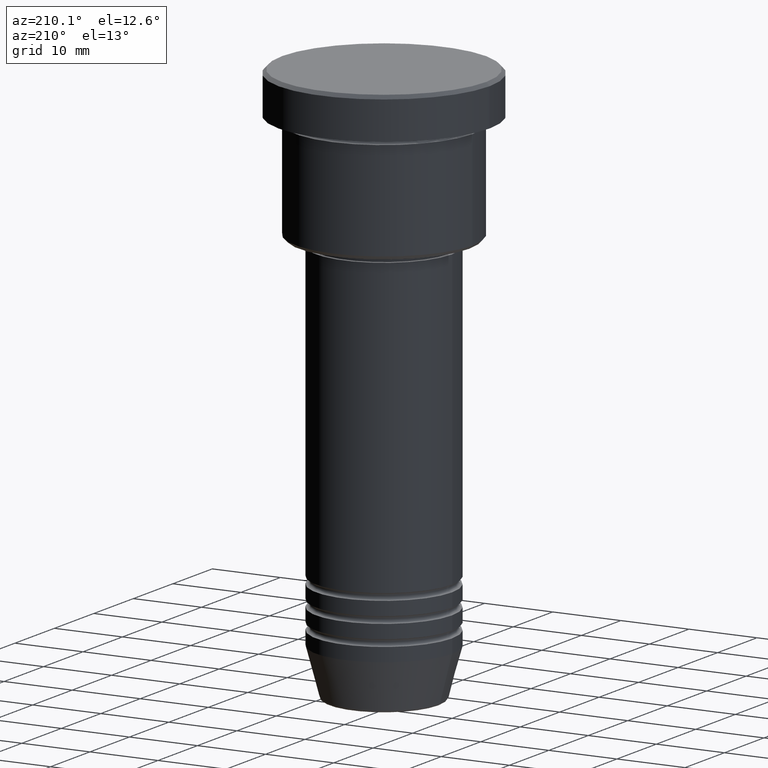
[diagram: clean part render]
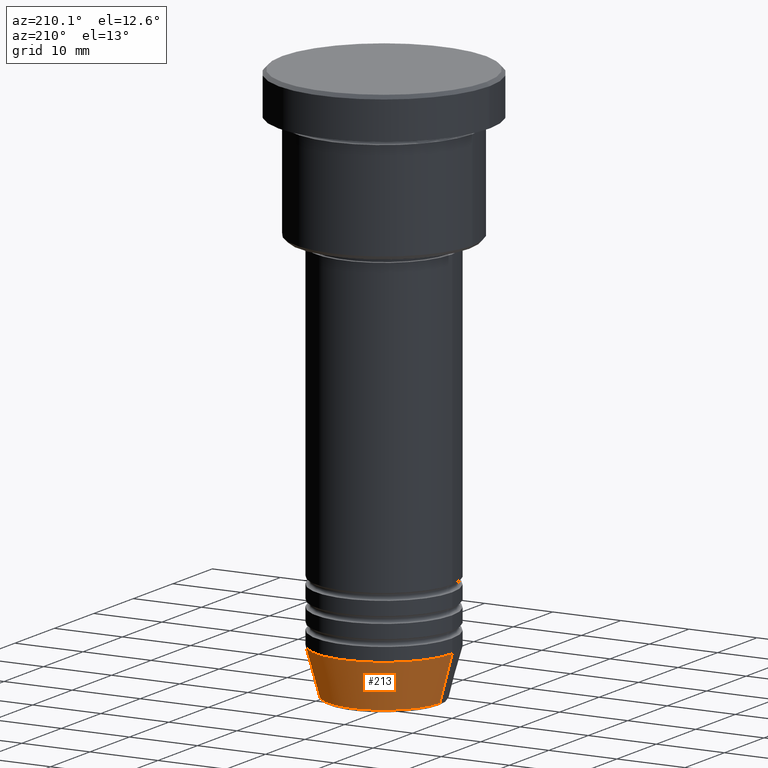
[diagram: same view with one face highlighted and labeled with its STEP entity id]
A machine part, auxiliary view. The second image highlights one B-rep face of the part: STEP entity #213.
In plain terms, the highlighted conical surface has half-angle 15 deg.
Its self-contained STEP definition (entity closure, byte-faithful):
#21 = ORIENTED_EDGE ( 'NONE', *, *, #557, .T. ) ;
#97 = DIRECTION ( 'NONE',  ( 1.000000000000000000, 0.000000000000000000, 0.000000000000000000 ) ) ;
#114 = ORIENTED_EDGE ( 'NONE', *, *, #784, .F. ) ;
#163 = AXIS2_PLACEMENT_3D ( 'NONE', #338, #252, #232 ) ;
#213 = ADVANCED_FACE ( 'NONE', ( #568 ), #904, .T. ) ;
#215 = LINE ( 'NONE', #401, #407 ) ;
#232 = DIRECTION ( 'NONE',  ( 1.000000000000000000, 0.000000000000000000, 0.000000000000000000 ) ) ;
#252 = DIRECTION ( 'NONE',  ( -0.000000000000000000, -0.000000000000000000, 1.000000000000000000 ) ) ;
#260 = CIRCLE ( 'NONE', #163, 10.00000000000000000 ) ;
#332 = VECTOR ( 'NONE', #686, 1000.000000000000000 ) ;
#338 = CARTESIAN_POINT ( 'NONE',  ( 0.000000000000000000, 0.000000000000000000, -74.99999999999998579 ) ) ;
#339 = VERTEX_POINT ( 'NONE', #974 ) ;
#369 = AXIS2_PLACEMENT_3D ( 'NONE', #913, #724, #97 ) ;
#394 = DIRECTION ( 'NONE',  ( -0.000000000000000000, -0.000000000000000000, 1.000000000000000000 ) ) ;
#401 = CARTESIAN_POINT ( 'NONE',  ( -10.00000000000000000, 1.224646799147353256E-15, -74.99999999999998579 ) ) ;
#407 = VECTOR ( 'NONE', #494, 1000.000000000000000 ) ;
#409 = VERTEX_POINT ( 'NONE', #797 ) ;
#410 = EDGE_CURVE ( 'NONE', #1040, #919, #260, .T. ) ;
#494 = DIRECTION ( 'NONE',  ( -0.2588190451025213501, 3.169619151431772337E-17, 0.9659258262890680902 ) ) ;
#535 = CARTESIAN_POINT ( 'NONE',  ( -10.00000000000000000, 1.224646799147353256E-15, -74.99999999999998579 ) ) ;
#556 = ORIENTED_EDGE ( 'NONE', *, *, #410, .F. ) ;
#557 = EDGE_CURVE ( 'NONE', #409, #339, #639, .T. ) ;
#568 = FACE_OUTER_BOUND ( 'NONE', #817, .T. ) ;
#572 = CARTESIAN_POINT ( 'NONE',  ( 0.000000000000000000, 0.000000000000000000, -74.99999999999998579 ) ) ;
#616 = CARTESIAN_POINT ( 'NONE',  ( 10.00000000000000000, 0.000000000000000000, -74.99999999999998579 ) ) ;
#639 = CIRCLE ( 'NONE', #369, 8.223655072137187716 ) ;
#643 = ORIENTED_EDGE ( 'NONE', *, *, #1183, .T. ) ;
#686 = DIRECTION ( 'NONE',  ( 0.2588190451025213501, 0.000000000000000000, 0.9659258262890680902 ) ) ;
#692 = LINE ( 'NONE', #1044, #332 ) ;
#724 = DIRECTION ( 'NONE',  ( -0.000000000000000000, -0.000000000000000000, 1.000000000000000000 ) ) ;
#749 = DIRECTION ( 'NONE',  ( 1.000000000000000000, 0.000000000000000000, 0.000000000000000000 ) ) ;
#784 = EDGE_CURVE ( 'NONE', #409, #1040, #692, .T. ) ;
#797 = CARTESIAN_POINT ( 'NONE',  ( 8.223655072137187716, 0.000000000000000000, -81.62940952255125637 ) ) ;
#817 = EDGE_LOOP ( 'NONE', ( #21, #643, #556, #114 ) ) ;
#904 = CONICAL_SURFACE ( 'NONE', #920, 10.00000000000000000, 0.2617993877991500740 ) ;
#913 = CARTESIAN_POINT ( 'NONE',  ( 0.000000000000000000, 0.000000000000000000, -81.62940952255125637 ) ) ;
#919 = VERTEX_POINT ( 'NONE', #535 ) ;
#920 = AXIS2_PLACEMENT_3D ( 'NONE', #572, #394, #749 ) ;
#974 = CARTESIAN_POINT ( 'NONE',  ( -8.223655072137187716, 1.115877042642911856E-15, -81.62940952255125637 ) ) ;
#1040 = VERTEX_POINT ( 'NONE', #616 ) ;
#1044 = CARTESIAN_POINT ( 'NONE',  ( 10.00000000000000000, 0.000000000000000000, -74.99999999999998579 ) ) ;
#1183 = EDGE_CURVE ( 'NONE', #339, #919, #215, .T. ) ;